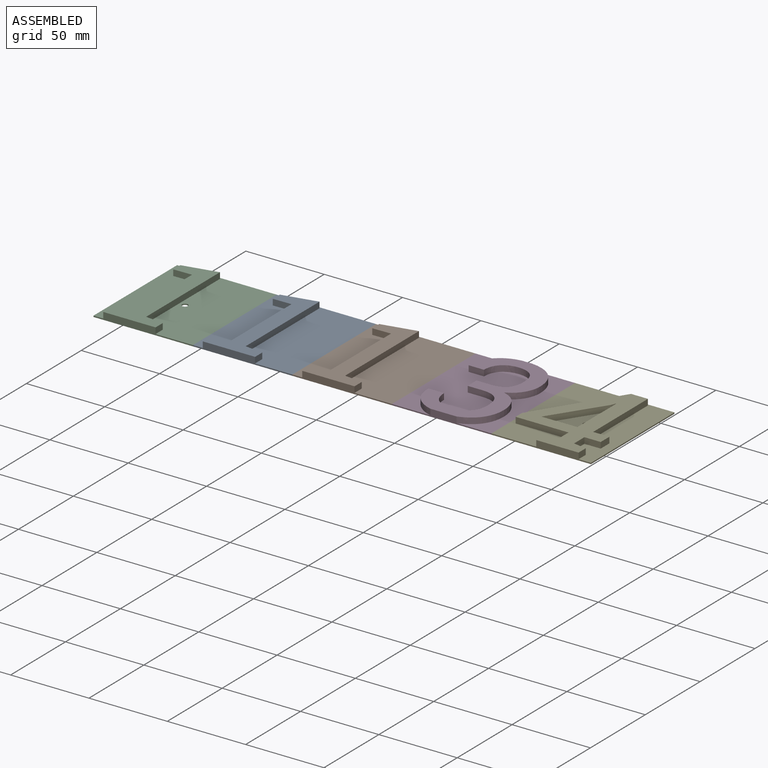
[diagram: assembled view]
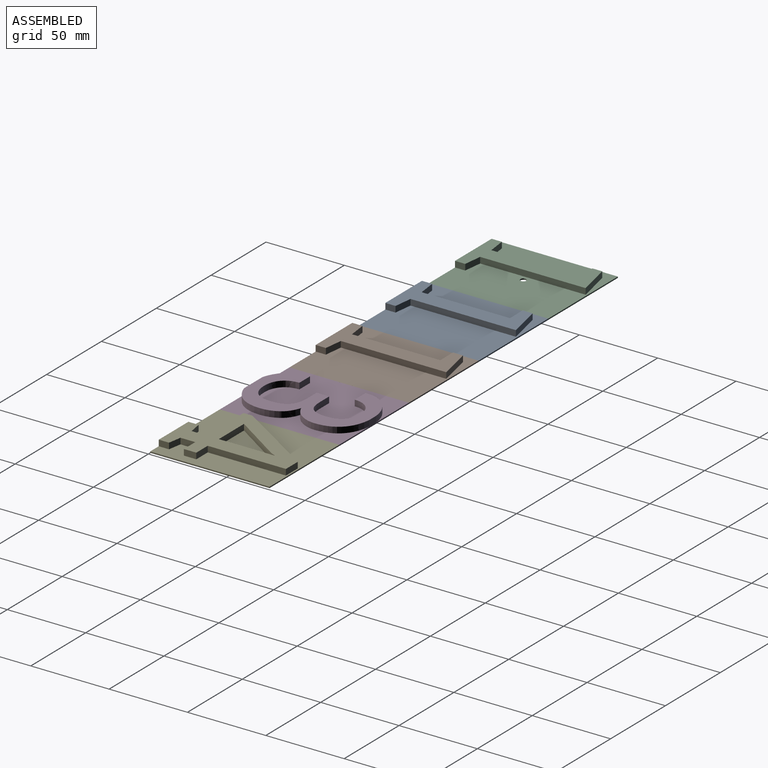
[diagram: assembled view, second angle]
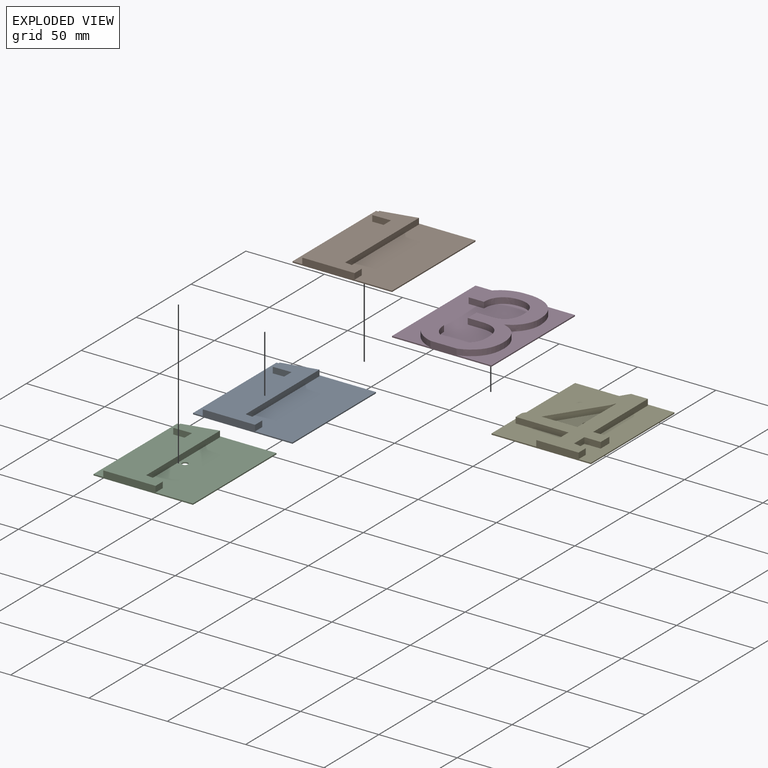
[diagram: exploded view]
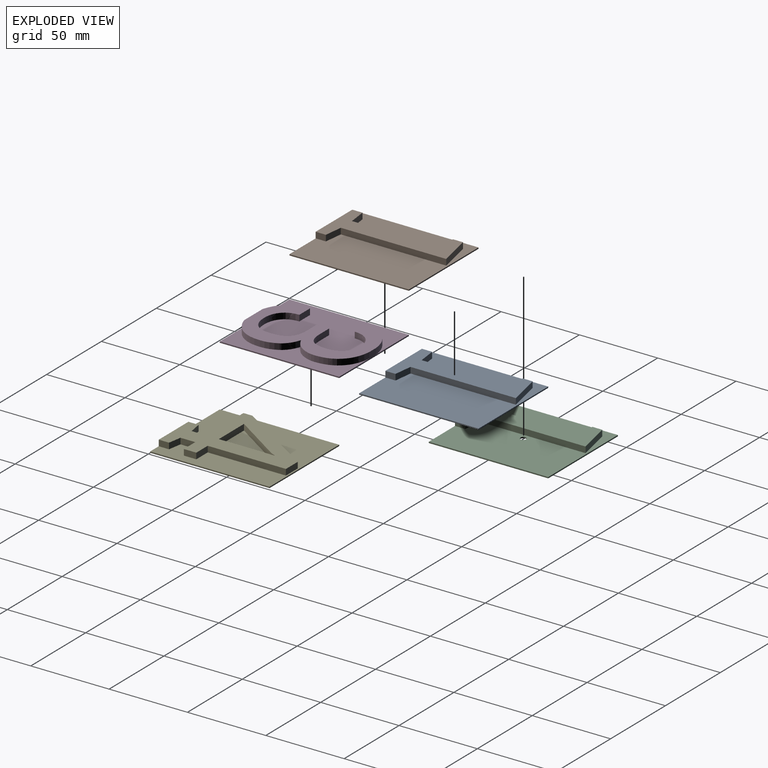
[diagram: exploded view, second angle]
ASSEMBLY  parts=5 mates=4
PART A: 16 faces, bbox 63.5x76.2x4.6 mm
  f0: plane 76.2x63.5mm, normal (0,0,1), area 3826.5mm2, adj f1,f2,f3,f4,f6,f7,f8,f9
  f1: plane 63.5x4.57mm, normal (0,-1,0), area 175.6mm2, adj f0,f2,f4,f5,f6,f14,f15
  f2: plane 76.2x0.76mm, normal (1,0,0), area 58.1mm2, adj f0,f1,f3,f5
  f3: plane 63.5x0.76mm, normal (0,1,0), area 48.4mm2, adj f0,f2,f4,f5
  f4: plane 76.2x0.76mm, normal (-1,0,0), area 58.1mm2, adj f0,f1,f3,f5
  f5: plane 76.2x63.5mm, normal (0,0,-1), area 4838.7mm2, adj f1,f2,f3,f4
  f6: plane 6.52x3.81mm, normal (1,0,0), area 24.8mm2, adj f0,f1,f7,f15
  f7: plane 11.58x3.81mm, normal (0.12,0.99,0), area 44.4mm2, adj f0,f6,f8,f15
  f8: plane 67.29x3.81mm, normal (1,0,0), area 256.4mm2, adj f0,f7,f9,f15
  f9: plane 22.01x4.75mm, normal (-0.21,0.98,0), area 85.8mm2, adj f0,f8,f10,f15
  f10: plane 6.37x3.81mm, normal (-1,0,0), area 24.3mm2, adj f0,f9,f11,f15
  f11: plane 11.82x3.81mm, normal (0.02,-1,0), area 45.1mm2, adj f0,f10,f12,f15
  f12: plane 56.39x3.81mm, normal (-1,0,0), area 214.8mm2, adj f0,f11,f13,f15
  f13: plane 11.63x3.81mm, normal (-0.12,0.99,0), area 44.6mm2, adj f0,f12,f14,f15
  f14: plane 6.52x3.81mm, normal (-1,0,0), area 24.8mm2, adj f0,f1,f13,f15
  f15: plane 75.24x33.59mm, normal (0,0,1), area 1012.2mm2, adj f1,f6,f7,f8,f9,f10,f11,f12
PART B: same geometry as A
PART C: 17 faces, bbox 63.5x76.2x4.6 mm
  f0: plane 76.2x63.5mm, normal (0,0,1), area 3815.8mm2, adj f1,f2,f3,f4,f6,f7,f8,f9
  f1: plane 63.5x4.57mm, normal (0,-1,0), area 175.6mm2, adj f0,f2,f4,f5,f6,f14,f15
  f2: plane 76.2x0.76mm, normal (1,0,0), area 58.1mm2, adj f0,f1,f3,f5
  f3: plane 63.5x0.76mm, normal (0,1,0), area 48.4mm2, adj f0,f2,f4,f5
  f4: plane 76.2x0.76mm, normal (-1,0,0), area 58.1mm2, adj f0,f1,f3,f5
  f5: plane 76.2x63.5mm, normal (0,0,-1), area 4827.9mm2, adj f1,f2,f3,f4,f16
  f6: plane 6.52x3.81mm, normal (1,0,0), area 24.8mm2, adj f0,f1,f7,f15
  f7: plane 11.58x3.81mm, normal (0.12,0.99,0), area 44.4mm2, adj f0,f6,f8,f15
  f8: plane 67.29x3.81mm, normal (1,0,0), area 256.4mm2, adj f0,f7,f9,f15
  f9: plane 22.01x4.75mm, normal (-0.21,0.98,0), area 85.8mm2, adj f0,f8,f10,f15
  f10: plane 6.37x3.81mm, normal (-1,0,0), area 24.3mm2, adj f0,f9,f11,f15
  f11: plane 11.82x3.81mm, normal (0.02,-1,0), area 45.1mm2, adj f0,f10,f12,f15
  f12: plane 56.39x3.81mm, normal (-1,0,0), area 214.8mm2, adj f0,f11,f13,f15
  f13: plane 11.63x3.81mm, normal (-0.12,0.99,0), area 44.6mm2, adj f0,f12,f14,f15
  f14: plane 6.52x3.81mm, normal (-1,0,0), area 24.8mm2, adj f0,f1,f13,f15
  f15: plane 75.24x33.59mm, normal (0,0,1), area 1012.2mm2, adj f1,f6,f7,f8,f9,f10,f11,f12
  f16: cylinder r=1.85mm len=3.7mm, axis (0,0,-1), area 8.9mm2, adj f0,f5
PART D: 39 faces, bbox 63.5x76.5x4.6 mm
  f0: plane 76.55x27.89mm, normal (0,0,1), area 816.2mm2, adj f2,f3,f4,f7,f31,f32,f33,f34
  f1: plane 76.53x46.77mm, normal (0,0,1), area 2533.4mm2, adj f2,f4,f5,f8,f9,f10,f11,f12
  f2: plane 63.5x4.57mm, normal (0,-1,0), area 112.4mm2, adj f0,f1,f3,f5,f6,f30,f31,f38
  f3: plane 76.2x0.76mm, normal (1,0,0), area 58.1mm2, adj f0,f2,f4,f6
  f4: plane 63.5x4.57mm, normal (0,1,0), area 71.7mm2, adj f0,f1,f3,f5,f6,f7,f8,f38
  f5: plane 76.2x0.76mm, normal (-1,0,0), area 58.1mm2, adj f1,f2,f4,f6
  f6: plane 76.2x63.5mm, normal (0,0,-1), area 4838.7mm2, adj f2,f3,f4,f5
  f7: extruded ~13.53x5.42mm, area 56.5mm2, adj f0,f4,f37,f38
  f8: extruded ~13.81x5.84mm, area 58.2mm2, adj f1,f4,f9,f38
  f9: extruded ~14.5x6.18mm, area 62.1mm2, adj f1,f8,f10,f38
  f10: plane 3.81x0.31mm, normal (-0.95,-0.3,0), area 1.3mm2, adj f1,f9,f11,f38
  f11: plane 9.77x3.81mm, normal (0,-1,0), area 37.2mm2, adj f1,f10,f12,f38
  f12: extruded ~9.28x3.81mm, area 39mm2, adj f1,f11,f13,f38
  f13: extruded ~9.53x3.81mm, area 39.7mm2, adj f1,f12,f14,f38
  f14: extruded ~9.46x3.81mm, area 39.3mm2, adj f1,f13,f15,f38
  f15: extruded ~9.82x3.81mm, area 40.4mm2, adj f1,f14,f16,f38
  f16: extruded ~9.43x3.81mm, area 38.3mm2, adj f1,f15,f17,f38
  f17: extruded ~9.58x3.81mm, area 40mm2, adj f1,f16,f18,f38
  f18: plane 8.9x3.81mm, normal (0,1,0), area 33.9mm2, adj f1,f17,f19,f38
  f19: plane 7.95x3.81mm, normal (-1,0,0), area 30.3mm2, adj f1,f18,f20,f38
  f20: plane 8.9x3.81mm, normal (0,-1,0), area 33.9mm2, adj f1,f19,f21,f38
  f21: extruded ~10.29x3.81mm, area 42.3mm2, adj f1,f20,f22,f38
  f22: extruded ~10.29x3.81mm, area 42.2mm2, adj f1,f21,f23,f38
  f23: extruded ~10.38x3.81mm, area 43.1mm2, adj f1,f22,f24,f38
  f24: extruded ~10.14x3.81mm, area 41.9mm2, adj f1,f23,f25,f38
  f25: extruded ~10x3.81mm, area 41.4mm2, adj f1,f24,f26,f38
  f26: extruded ~9.45x3.81mm, area 39.7mm2, adj f1,f25,f27,f38
  f27: plane 9.71x3.81mm, normal (0,1,0), area 37mm2, adj f1,f26,f28,f38
  f28: plane 3.81x0.31mm, normal (-0.88,0.47,0), area 1.4mm2, adj f1,f27,f29,f38
  f29: extruded ~15.06x6.47mm, area 64.8mm2, adj f1,f28,f30,f38
  f30: extruded ~8.6x4.47mm, area 37.2mm2, adj f1,f2,f29,f38
  f31: extruded ~8.9x4.8mm, area 38.9mm2, adj f0,f2,f32,f38
  f32: extruded ~16.18x6.74mm, area 69mm2, adj f0,f31,f33,f38
  f33: extruded ~10.64x3.81mm, area 42.5mm2, adj f0,f32,f34,f38
  f34: extruded ~9.59x6.97mm, area 46.2mm2, adj f0,f33,f35,f38
  f35: extruded ~8.46x7.06mm, area 42.7mm2, adj f0,f34,f36,f38
  f36: extruded ~9.28x3.81mm, area 37.4mm2, adj f0,f35,f37,f38
  f37: extruded ~15.84x6.2mm, area 66.9mm2, adj f0,f7,f36,f38
  f38: plane 76.55x47.74mm, normal (0,0,1), area 1489.1mm2, adj f2,f4,f7,f8,f9,f10,f11,f12
PART E: 28 faces, bbox 63.5x76.2x4.6 mm
  f0: plane 76.2x63.5mm, normal (0,0,1), area 2781.1mm2, adj f1,f2,f3,f4,f10,f11,f12,f13
  f1: plane 63.5x4.57mm, normal (0,-1,0), area 151.2mm2, adj f0,f2,f4,f5,f10,f23,f25
  f2: plane 76.2x0.76mm, normal (1,0,0), area 58.1mm2, adj f0,f1,f3,f5
  f3: plane 63.5x0.76mm, normal (0,1,0), area 48.4mm2, adj f0,f2,f4,f5
  f4: plane 76.2x0.76mm, normal (-1,0,0), area 58.1mm2, adj f0,f1,f3,f5
  f5: plane 76.2x63.5mm, normal (0,0,-1), area 4827.9mm2, adj f1,f2,f3,f4,f27
  f6: plane 22.95x3.81mm, normal (0,1,0), area 87.4mm2, adj f7,f24,f25,f26
  f7: plane 32.78x21.6mm, normal (0.84,-0.55,0), area 149.5mm2, adj f6,f8,f25,f26
  f8: plane 3.81x2.73mm, normal (0.93,-0.36,0), area 11.1mm2, adj f7,f9,f25,f26
  f9: plane 3.81x0.31mm, normal (-0.3,-0.95,0), area 1.3mm2, adj f8,f24,f25,f26
  f10: plane 6.52x3.81mm, normal (1,0,0), area 24.8mm2, adj f0,f1,f11,f25
  f11: plane 8.43x3.81mm, normal (0.17,0.99,0), area 32.6mm2, adj f0,f10,f12,f25
  f12: plane 9.41x3.81mm, normal (1,0,0), area 35.8mm2, adj f0,f11,f13,f25
  f13: plane 10.39x3.81mm, normal (0,-1,0), area 39.6mm2, adj f0,f12,f14,f25
  f14: plane 7.95x3.81mm, normal (1,0,0), area 30.3mm2, adj f0,f13,f15,f25
  f15: plane 10.39x3.81mm, normal (0,1,0), area 39.6mm2, adj f0,f14,f16,f25
  f16: plane 49.92x3.81mm, normal (1,0,0), area 190.2mm2, adj f0,f15,f17,f25
  f17: plane 10.75x3.81mm, normal (0,1,0), area 41mm2, adj f0,f16,f18,f25
  f18: plane 52.14x33.17mm, normal (-0.84,0.54,0), area 235.4mm2, adj f0,f17,f19,f25
  f19: plane 5.74x3.81mm, normal (-1,0,0), area 21.9mm2, adj f0,f18,f20,f25
  f20: plane 33.8x3.81mm, normal (0,-1,0), area 128.8mm2, adj f0,f19,f21,f25
  f21: plane 9.41x3.81mm, normal (-1,0,0), area 35.8mm2, adj f0,f20,f22,f25
  f22: plane 8.43x3.81mm, normal (-0.17,0.99,0), area 32.6mm2, adj f0,f21,f23,f25
  f23: plane 6.52x3.81mm, normal (-1,0,0), area 24.8mm2, adj f0,f1,f22,f25
  f24: plane 35.4x3.81mm, normal (-1,0,0), area 134.9mm2, adj f6,f9,f25,f26
  f25: plane 75.24x54.31mm, normal (0,0,1), area 1657mm2, adj f1,f6,f7,f8,f9,f10,f11,f12
  f26: plane 35.5x22.95mm, normal (0,0,1), area 389.9mm2, adj f6,f7,f8,f9,f24,f27
  f27: cylinder r=1.85mm len=3.7mm, axis (0,0,-1), area 8.9mm2, adj f5,f26
PLACE A t=(76.95,-31.6,28.39)mm
PLACE B t=(140.45,-31.6,28.39)mm
PLACE C t=(13.45,-31.6,28.39)mm
PLACE D t=(203.95,-31.6,28.39)mm
PLACE E t=(267.45,-31.6,28.39)mm
MATE fastened C.f0 <-> A.f0  axis (0,0,1) through (13.45,6.5,28.39)mm
MATE fastened D.f1 <-> B.f0  axis (0,0,1) through (140.45,6.5,28.39)mm
MATE fastened A.f0 <-> B.f0  axis (0,0,1) through (76.95,6.5,28.39)mm
MATE fastened E.f0 <-> D.f0  axis (0,0,1) through (203.95,6.5,28.39)mm
